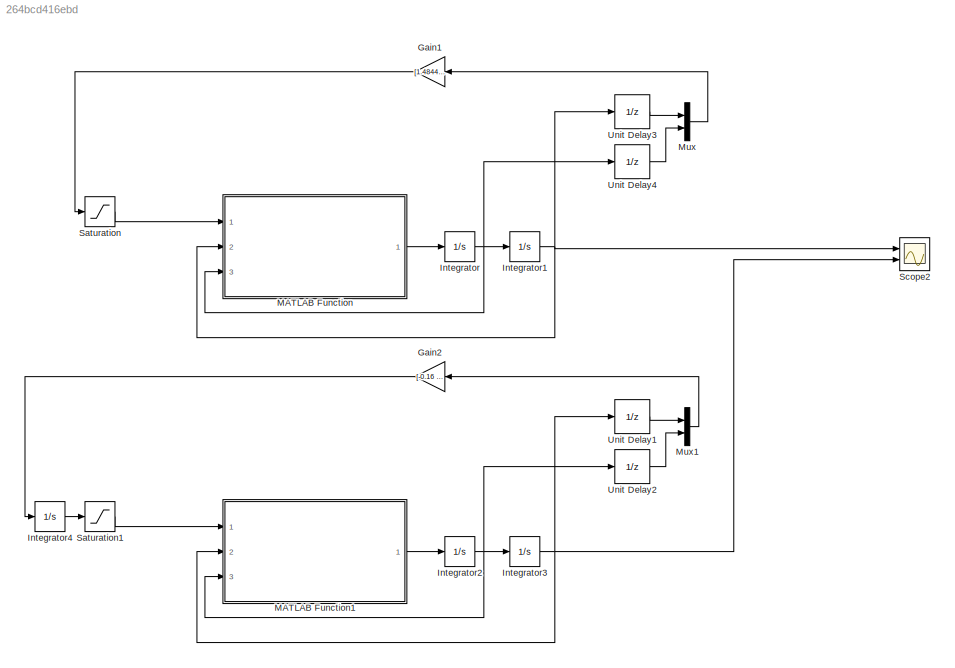
MODEL slx_264bcd416ebd
KIND model
CONFIG AbsTol = auto
CONFIG EnableMultiTasking = off
CONFIG FixedStep = auto
CONFIG MaxStep = auto
CONFIG MinStep = auto
CONFIG RelTol = 1e-3
CONFIG SampleTimeConstraint = Unconstrained
CONFIG Solver = VariableStepAuto
CONFIG SolverName = VariableStepAuto
CONFIG StartTime = 0.0
CONFIG StopTime = 10.0
BLOCK [Gain] Gain1
  Gain = [1.4844 0.4658]
  Multiplication = Matrix(K*u)
  OutDataTypeStr = Inherit: Inherit via internal rule
  ParamDataTypeStr = Inherit: Inherit via internal rule
  SaturateOnIntegerOverflow = off
BLOCK [Gain] Gain2
  Gain = [-0.16 0.0021]
  Multiplication = Matrix(K*u)
  OutDataTypeStr = Inherit: Inherit via internal rule
  ParamDataTypeStr = Inherit: Inherit via internal rule
  SaturateOnIntegerOverflow = off
BLOCK [Integrator] Integrator
  Ports = [1, 1]
BLOCK [Integrator] Integrator1
  InitialCondition = pi/3
  LimitOutput = on
  LowerSaturationLimit = -pi
  Ports = [1, 1]
  UpperSaturationLimit = pi
BLOCK [Integrator] Integrator2
  Ports = [1, 1]
BLOCK [Integrator] Integrator3
  InitialCondition = pi/3
  LimitOutput = on
  LowerSaturationLimit = -pi
  Ports = [1, 1]
  UpperSaturationLimit = pi
BLOCK [Integrator] Integrator4
  Ports = [1, 1]
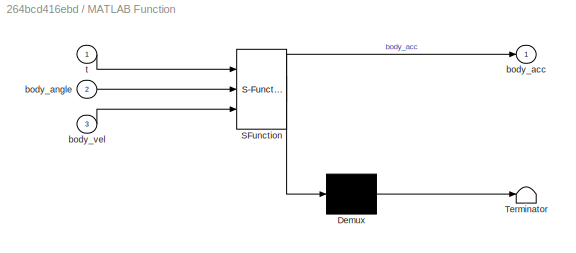
BLOCK [SubSystem] MATLAB Function
  ErrorFcn = Stateflow.Translate.translate
  PermitHierarchicalResolution = ExplicitOnly
  Ports = [3, 1]
  RequestExecContextInheritance = off
  SFBlockType = MATLAB Function
  TreatAsAtomicUnit = on
BLOCK [Demux] MATLAB Function/ Demux 
  Outputs = 1
  Ports = [1, 1]
BLOCK [S-Function] MATLAB Function/ SFunction 
  EnableBusSupport = on
  FunctionName = sf_sfun
  PortCounts = [3 2]
  Ports = [3, 2]
  SFcnIsStateOwnerBlock = off
  SFunctionDeploymentMode = off
  Tag = Stateflow S-Function usrmpc 2
BLOCK [Terminator] MATLAB Function/ Terminator 
BLOCK [Outport] MATLAB Function/body_acc
  IconDisplay = Port number
BLOCK [Inport] MATLAB Function/body_angle
  IconDisplay = Port number
  Port = 2
BLOCK [Inport] MATLAB Function/body_vel
  IconDisplay = Port number
  Port = 3
BLOCK [Inport] MATLAB Function/t
  IconDisplay = Port number
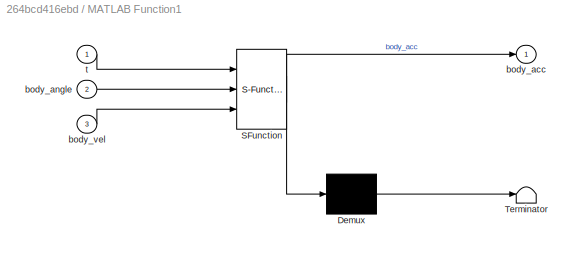
BLOCK [SubSystem] MATLAB Function1
  ErrorFcn = Stateflow.Translate.translate
  PermitHierarchicalResolution = ExplicitOnly
  Ports = [3, 1]
  RequestExecContextInheritance = off
  SFBlockType = MATLAB Function
  TreatAsAtomicUnit = on
BLOCK [Demux] MATLAB Function1/ Demux 
  Outputs = 1
  Ports = [1, 1]
BLOCK [S-Function] MATLAB Function1/ SFunction 
  EnableBusSupport = on
  FunctionName = sf_sfun
  PortCounts = [3 2]
  Ports = [3, 2]
  SFcnIsStateOwnerBlock = off
  SFunctionDeploymentMode = off
  Tag = Stateflow S-Function usrmpc 1
BLOCK [Terminator] MATLAB Function1/ Terminator 
BLOCK [Outport] MATLAB Function1/body_acc
  IconDisplay = Port number
BLOCK [Inport] MATLAB Function1/body_angle
  IconDisplay = Port number
  Port = 2
BLOCK [Inport] MATLAB Function1/body_vel
  IconDisplay = Port number
  Port = 3
BLOCK [Inport] MATLAB Function1/t
  IconDisplay = Port number
BLOCK [Mux] Mux
  DisplayOption = bar
  Inputs = 2
  Ports = [2, 1]
BLOCK [Mux] Mux1
  DisplayOption = bar
  Inputs = 2
  Ports = [2, 1]
BLOCK [Saturate] Saturation
  InputPortMap = u0
  LowerLimit = -1.4
  Ports = [1, 1]
  UpperLimit = 1.4
BLOCK [Saturate] Saturation1
  InputPortMap = u0
  LowerLimit = -1.4
  Ports = [1, 1]
  UpperLimit = 1.4
BLOCK [Scope] Scope2
  Floating = off
  NumInputPorts = 2
  Ports = [2]
  ScopeSpecificationString = Simulink.scopes.TimeScopeBlockCfg('CurrentConfiguration', extmgr.ConfigurationSet(extmgr.Configuration('Core','General UI',true),extmgr.Configuration('Core','Source UI',true),extmgr.Configuration('Sources','WiredSimulink',true,'DataLoggingVariableName','ScopeData2'),extmgr.Configuration('Visuals','Time Domain',true,'SerializedDisplays',{struct('MinYLimReal','-0.3927','MaxYLimReal','3.53429','YLabe...<+1382ch>
BLOCK [UnitDelay] Unit Delay1
  InitialCondition = pi/3
  InputProcessing = Elements as channels (sample based)
  SampleTime = 0.002
BLOCK [UnitDelay] Unit Delay2
  InitialCondition = pi/3
  InputProcessing = Elements as channels (sample based)
  SampleTime = 0.002
BLOCK [UnitDelay] Unit Delay3
  InitialCondition = pi/3
  InputProcessing = Elements as channels (sample based)
  SampleTime = 0.002
BLOCK [UnitDelay] Unit Delay4
  InitialCondition = pi/3
  InputProcessing = Elements as channels (sample based)
  SampleTime = 0.002
LINE Gain1:1 -> Saturation:1
LINE Gain2:1 -> Integrator4:1
NET Integrator1:1 -> MATLAB Function:2, Scope2:1, Unit Delay3:1
NET Integrator2:1 -> Integrator3:1, MATLAB Function1:3, Unit Delay2:1
NET Integrator3:1 -> MATLAB Function1:2, Scope2:2, Unit Delay1:1
LINE Integrator4:1 -> Saturation1:1
NET Integrator:1 -> Integrator1:1, MATLAB Function:3, Unit Delay4:1
LINE MATLAB Function1:1 -> Integrator2:1
LINE MATLAB Function:1 -> Integrator:1
LINE Mux1:1 -> Gain2:1
LINE Mux:1 -> Gain1:1
LINE Saturation1:1 -> MATLAB Function1:1
LINE Saturation:1 -> MATLAB Function:1
LINE Unit Delay1:1 -> Mux1:1
LINE Unit Delay2:1 -> Mux1:2
LINE Unit Delay3:1 -> Mux:1
LINE Unit Delay4:1 -> Mux:2
note: NET lines group one-source signal fan-out (src -> all destinations, sorted); 1:1 wires keep LINE
CHART MATLAB Function1 states=1 transitions=1
  STATE_LABEL 'eML_blk_kernel()'
  STATE_LABEL 'SCRIPT:\nfunction body_acc = fcn(t,body_angle,body_vel)\nbody_acc=(+1429.48*sin(body_angle)-1215.55*t-2083.85*t*cos(body_angle)-3.87597*sin(2*body_angle)*body_vel^2)/(2.91931+cos(body_angle)^2+8.75194*sin(body_angle)^2);\n'
CHART MATLAB Function states=1 transitions=1
  STATE_LABEL 'eML_blk_kernel()'
  STATE_LABEL 'SCRIPT:\nfunction body_acc = fcn(t,body_angle,body_vel)\nbody_acc=(+1429.48*sin(body_angle)-1215.55*t-2083.85*t*cos(body_angle)-3.87597*sin(2*body_angle)*body_vel^2)/(2.91931+cos(body_angle)^2+8.75194*sin(body_angle)^2);\n'
